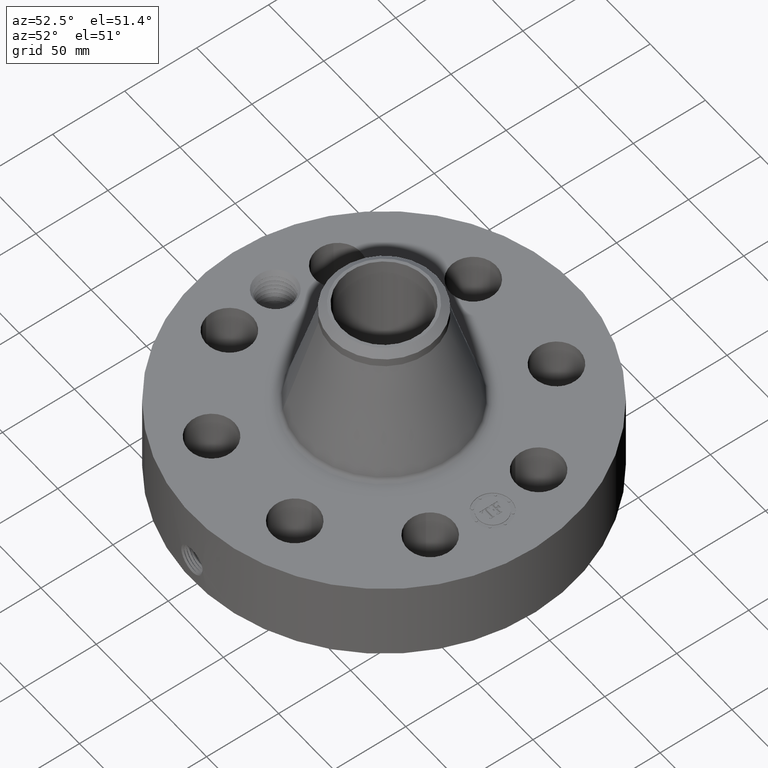
[diagram: clean part render]
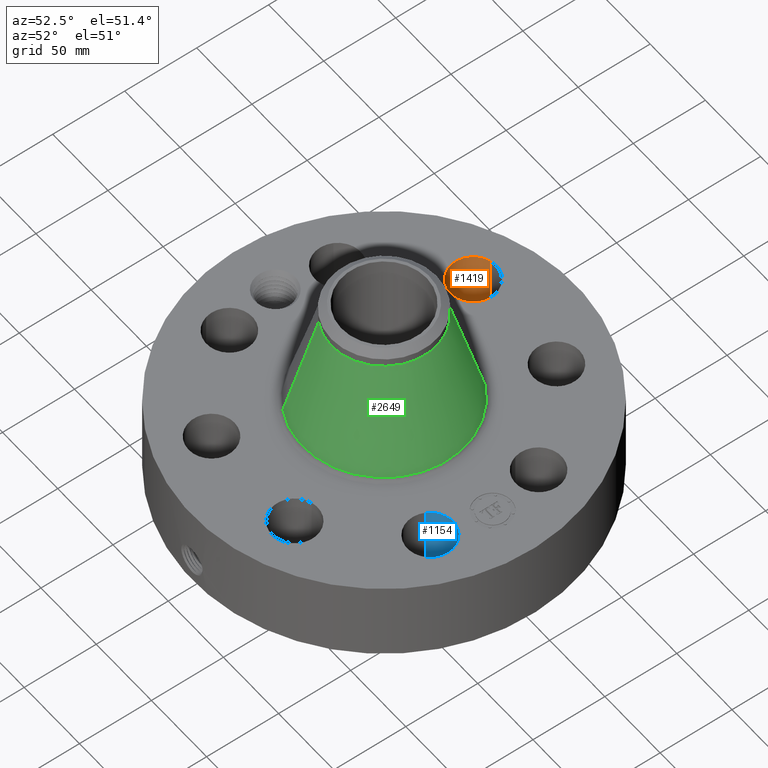
[diagram: same view with three faces highlighted in distinct colors, each labeled with its STEP entity id]
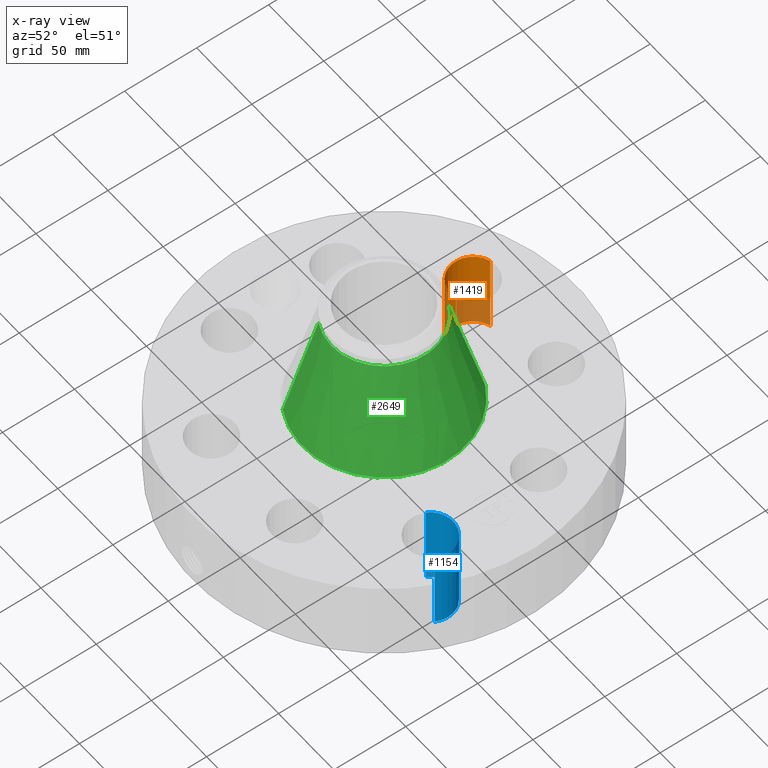
[diagram: x-ray of the same camera — body ghosted, the three highlighted faces saturated]
A machine part, auxiliary view with three faces highlighted in distinct colors.
The next image is the same camera in x-ray (body ghosted, the three faces saturated) — at least one of them is partly hidden behind the body in this view.
Their STEP definitions:

[orange] entity #1419 — the highlighted cylindrical surface (edge-blend (fillet) strip) has radius 15.875 mm, axis along (0, 0, -1).
#339=AXIS2_PLACEMENT_3D('Circle Axis2P3D',#337,#338,$) ;
#672=AXIS2_PLACEMENT_3D('Circle Axis2P3D',#670,#671,$) ;
#1401=AXIS2_PLACEMENT_3D('Cylinder Axis2P3D',#1398,#1399,#1400) ;
#337=CARTESIAN_POINT('Axis2P3D Location',(-1.48289830042,3.5800331885,0.250000000001)) ;
#341=CARTESIAN_POINT('Vertex',(-1.30693609346,2.98031466975,0.250000000001)) ;
#343=CARTESIAN_POINT('Vertex',(-1.65886050739,4.17975170724,0.250000000001)) ;
#665=CARTESIAN_POINT('Vertex',(-1.65886050739,4.17975170724,2.50000000001)) ;
#667=CARTESIAN_POINT('Vertex',(-1.30693609346,2.98031466975,2.50000000001)) ;
#670=CARTESIAN_POINT('Axis2P3D Location',(-1.48289830042,3.5800331885,2.50000000001)) ;
#1398=CARTESIAN_POINT('Axis2P3D Location',(-1.48289830042,3.5800331885,2.49606299214)) ;
#1403=CARTESIAN_POINT('Line Origine',(-1.30693609346,2.98031466975,1.37500000001)) ;
#1408=CARTESIAN_POINT('Line Origine',(-1.65886050739,4.17975170724,1.37500000001)) ;
#338=DIRECTION('Axis2P3D Direction',(0.,0.,-0.0393700787402)) ;
#671=DIRECTION('Axis2P3D Direction',(0.,0.,-0.0393700787402)) ;
#1399=DIRECTION('Axis2P3D Direction',(0.,0.,-0.0393700787402)) ;
#1400=DIRECTION('Axis2P3D XDirection',(-0.0110842335096,0.0377775444876,0.)) ;
#1404=DIRECTION('Vector Direction',(0.,0.,-0.0393700787402)) ;
#1409=DIRECTION('Vector Direction',(0.,0.,-0.0393700787402)) ;
#1405=VECTOR('Line Direction',#1404,0.0393700787402) ;
#1410=VECTOR('Line Direction',#1409,0.0393700787402) ;
#1414=ORIENTED_EDGE('',*,*,#1407,.F.) ;
#1415=ORIENTED_EDGE('',*,*,#345,.T.) ;
#1416=ORIENTED_EDGE('',*,*,#1412,.T.) ;
#1417=ORIENTED_EDGE('',*,*,#674,.F.) ;
#1419=ADVANCED_FACE('PartBody',(#1418),#1402,.F.) ;
#340=CIRCLE('generated circle',#339,0.625000000003) ;
#673=CIRCLE('generated circle',#672,0.625000000003) ;
#1402=CYLINDRICAL_SURFACE('generated cylinder',#1401,0.625000000003) ;
#345=EDGE_CURVE('',#342,#344,#340,.T.) ;
#674=EDGE_CURVE('',#668,#666,#673,.T.) ;
#1407=EDGE_CURVE('',#342,#668,#1406,.F.) ;
#1412=EDGE_CURVE('',#344,#666,#1411,.F.) ;
#1413=EDGE_LOOP('',(#1414,#1415,#1416,#1417)) ;
#1418=FACE_OUTER_BOUND('',#1413,.T.) ;
#1406=LINE('Line',#1403,#1405) ;
#1411=LINE('Line',#1408,#1410) ;
#342=VERTEX_POINT('',#341) ;
#344=VERTEX_POINT('',#343) ;
#666=VERTEX_POINT('',#665) ;
#668=VERTEX_POINT('',#667) ;

[blue] entity #1154 — the highlighted cylindrical surface (edge-blend (fillet) strip) has radius 15.875 mm, axis along (0, -0, -1).
#240=AXIS2_PLACEMENT_3D('Circle Axis2P3D',#238,#239,$) ;
#555=AXIS2_PLACEMENT_3D('Circle Axis2P3D',#553,#554,$) ;
#1129=AXIS2_PLACEMENT_3D('Cylinder Axis2P3D',#1126,#1127,#1128) ;
#233=CARTESIAN_POINT('Vertex',(4.12852228968,-1.78253926205,0.250000000001)) ;
#235=CARTESIAN_POINT('Vertex',(3.03154408731,-1.18325733879,0.250000000001)) ;
#238=CARTESIAN_POINT('Axis2P3D Location',(3.5800331885,-1.48289830042,0.250000000001)) ;
#553=CARTESIAN_POINT('Axis2P3D Location',(3.5800331885,-1.48289830042,2.50000000001)) ;
#557=CARTESIAN_POINT('Vertex',(3.03154408731,-1.18325733879,2.50000000001)) ;
#559=CARTESIAN_POINT('Vertex',(4.12852228968,-1.78253926205,2.50000000001)) ;
#1126=CARTESIAN_POINT('Axis2P3D Location',(3.5800331885,-1.48289830042,2.49606299214)) ;
#1131=CARTESIAN_POINT('Line Origine',(4.12852228968,-1.78253926205,1.37500000001)) ;
#1136=CARTESIAN_POINT('Line Origine',(3.03154408731,-1.18325733879,1.37500000001)) ;
#239=DIRECTION('Axis2P3D Direction',(0.,0.,-0.0393700787402)) ;
#554=DIRECTION('Axis2P3D Direction',(0.,0.,-0.0393700787402)) ;
#1127=DIRECTION('Axis2P3D Direction',(0.,-0.,-0.0393700787402)) ;
#1128=DIRECTION('Axis2P3D XDirection',(-0.0345504945626,0.0188750212049,0.)) ;
#1132=DIRECTION('Vector Direction',(0.,0.,-0.0393700787402)) ;
#1137=DIRECTION('Vector Direction',(0.,0.,-0.0393700787402)) ;
#1133=VECTOR('Line Direction',#1132,0.0393700787402) ;
#1138=VECTOR('Line Direction',#1137,0.0393700787402) ;
#1149=ORIENTED_EDGE('',*,*,#1140,.F.) ;
#1150=ORIENTED_EDGE('',*,*,#242,.T.) ;
#1151=ORIENTED_EDGE('',*,*,#1135,.T.) ;
#1152=ORIENTED_EDGE('',*,*,#561,.F.) ;
#1154=ADVANCED_FACE('PartBody',(#1153),#1130,.F.) ;
#241=CIRCLE('generated circle',#240,0.625000000002) ;
#556=CIRCLE('generated circle',#555,0.625000000002) ;
#1130=CYLINDRICAL_SURFACE('generated cylinder',#1129,0.625000000002) ;
#242=EDGE_CURVE('',#236,#234,#241,.T.) ;
#561=EDGE_CURVE('',#558,#560,#556,.T.) ;
#1135=EDGE_CURVE('',#234,#560,#1134,.F.) ;
#1140=EDGE_CURVE('',#236,#558,#1139,.F.) ;
#1148=EDGE_LOOP('',(#1149,#1150,#1151,#1152)) ;
#1153=FACE_OUTER_BOUND('',#1148,.T.) ;
#1134=LINE('Line',#1131,#1133) ;
#1139=LINE('Line',#1136,#1138) ;
#234=VERTEX_POINT('',#233) ;
#236=VERTEX_POINT('',#235) ;
#558=VERTEX_POINT('',#557) ;
#560=VERTEX_POINT('',#559) ;

[green] entity #2649 — the highlighted conical surface has half-angle 15.204 deg.
#1891=AXIS2_PLACEMENT_3D('Circle Axis2P3D',#1889,#1890,$) ;
#2622=AXIS2_PLACEMENT_3D('Cone Axis2P3D',#2619,#2620,#2621) ;
#2633=AXIS2_PLACEMENT_3D('Circle Axis2P3D',#2631,#2632,$) ;
#1886=CARTESIAN_POINT('Vertex',(1.06717279304,1.95344669461,2.58852946514)) ;
#1889=CARTESIAN_POINT('Axis2P3D Location',(0.,0.,2.58852946514)) ;
#1893=CARTESIAN_POINT('Vertex',(-1.06717279304,-1.95344669461,2.58852946514)) ;
#2619=CARTESIAN_POINT('Axis2P3D Location',(0.,0.,5.4804984093)) ;
#2624=CARTESIAN_POINT('Line Origine',(0.878772784319,1.60858279187,4.03451393722)) ;
#2628=CARTESIAN_POINT('Vertex',(0.690372775593,1.26371888913,5.4804984093)) ;
#2631=CARTESIAN_POINT('Axis2P3D Location',(0.,0.,5.4804984093)) ;
#2635=CARTESIAN_POINT('Vertex',(-0.690372775593,-1.26371888913,5.4804984093)) ;
#2638=CARTESIAN_POINT('Line Origine',(-0.878772784319,-1.60858279187,4.03451393722)) ;
#1890=DIRECTION('Axis2P3D Direction',(0.,0.,-0.0393700787402)) ;
#2620=DIRECTION('Axis2P3D Direction',(0.,0.,-0.0393700787402)) ;
#2621=DIRECTION('Axis2P3D XDirection',(-0.0188750212049,-0.0345504945626,0.)) ;
#2625=DIRECTION('Vector Direction',(0.00495005844131,0.00906102119858,-0.0379920770197)) ;
#2632=DIRECTION('Axis2P3D Direction',(0.,0.,-0.0393700787402)) ;
#2639=DIRECTION('Vector Direction',(-0.00495005844131,-0.00906102119858,-0.0379920770197)) ;
#2626=VECTOR('Line Direction',#2625,0.0393700787402) ;
#2640=VECTOR('Line Direction',#2639,0.0393700787402) ;
#2644=ORIENTED_EDGE('',*,*,#1895,.F.) ;
#2645=ORIENTED_EDGE('',*,*,#2630,.T.) ;
#2646=ORIENTED_EDGE('',*,*,#2637,.T.) ;
#2647=ORIENTED_EDGE('',*,*,#2642,.F.) ;
#2649=ADVANCED_FACE('PartBody',(#2648),#2623,.T.) ;
#1892=CIRCLE('generated circle',#1891,2.22594064586) ;
#2634=CIRCLE('generated circle',#2633,1.44000000001) ;
#2623=CONICAL_SURFACE('Cone',#2622,1.44000000001,0.265357691976) ;
#1895=EDGE_CURVE('',#1887,#1894,#1892,.T.) ;
#2630=EDGE_CURVE('',#1887,#2629,#2627,.F.) ;
#2637=EDGE_CURVE('',#2629,#2636,#2634,.T.) ;
#2642=EDGE_CURVE('',#1894,#2636,#2641,.F.) ;
#2643=EDGE_LOOP('',(#2644,#2645,#2646,#2647)) ;
#2648=FACE_OUTER_BOUND('',#2643,.T.) ;
#2627=LINE('Line',#2624,#2626) ;
#2641=LINE('Line',#2638,#2640) ;
#1887=VERTEX_POINT('',#1886) ;
#1894=VERTEX_POINT('',#1893) ;
#2629=VERTEX_POINT('',#2628) ;
#2636=VERTEX_POINT('',#2635) ;